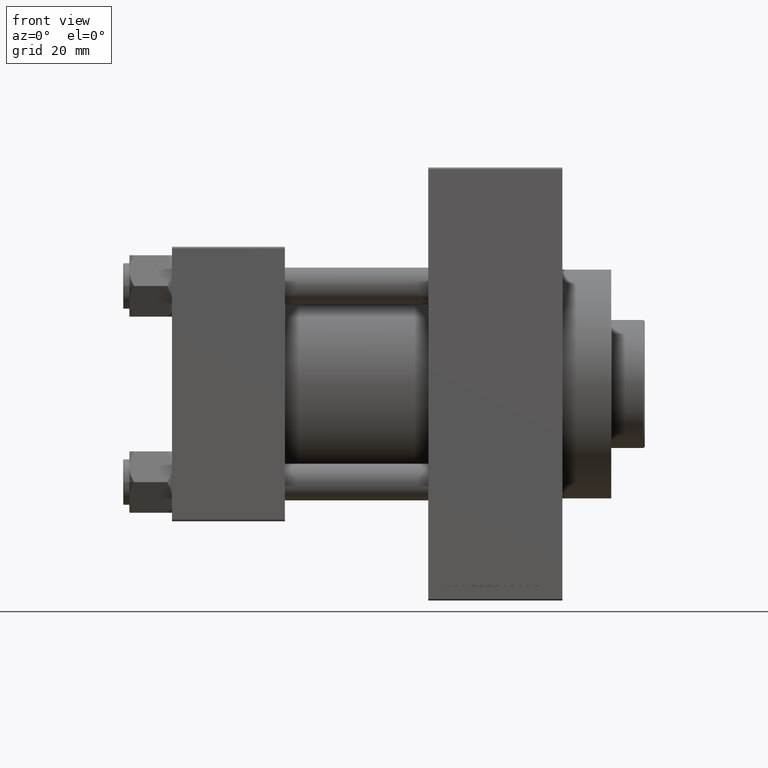
[diagram: clean part render]
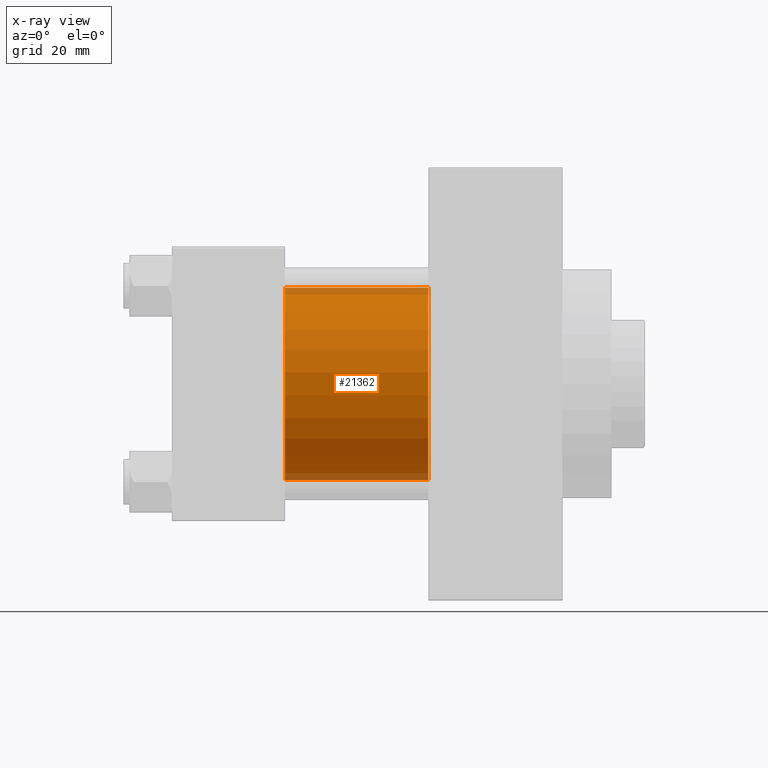
[diagram: x-ray — body ghosted, one internal face saturated and labeled with its STEP entity id]
A machine part, front view, then the same camera in x-ray: the body is ghosted and one INTERNAL B-rep face — a face not visible from any outside direction — is saturated and labeled: STEP entity #21362.
In plain terms, the highlighted cylindrical surface (partial cylindrical patch) has radius 31.5 mm, axis along (-1, -0, -0).
Its self-contained STEP definition (entity closure, byte-faithful):
#1508 = VERTEX_POINT ( 'NONE', #25627 ) ;
#2136 = DIRECTION ( 'NONE',  ( -1.000000000000000000, -0.000000000000000000, -0.000000000000000000 ) ) ;
#2264 = EDGE_LOOP ( 'NONE', ( #34406, #22939, #37715, #25008 ) ) ;
#2552 = AXIS2_PLACEMENT_3D ( 'NONE', #26801, #36847, #11533 ) ;
#5709 = EDGE_CURVE ( 'NONE', #17644, #1508, #21047, .T. ) ;
#7767 = CARTESIAN_POINT ( 'NONE',  ( 83.99999999999998579, -2.602085213965210642E-15, 0.000000000000000000 ) ) ;
#8825 = AXIS2_PLACEMENT_3D ( 'NONE', #7767, #22565, #33559 ) ;
#10502 = VERTEX_POINT ( 'NONE', #45846 ) ;
#11533 = DIRECTION ( 'NONE',  ( 0.000000000000000000, 0.000000000000000000, -1.000000000000000000 ) ) ;
#13221 = CIRCLE ( 'NONE', #2552, 31.50000000000000000 ) ;
#13406 = AXIS2_PLACEMENT_3D ( 'NONE', #13654, #21073, #28222 ) ;
#13654 = CARTESIAN_POINT ( 'NONE',  ( 83.99999999999998579, -2.602085213965210642E-15, 0.000000000000000000 ) ) ;
#13875 = VECTOR ( 'NONE', #2136, 1000.000000000000000 ) ;
#14177 = VERTEX_POINT ( 'NONE', #23691 ) ;
#14766 = LINE ( 'NONE', #25050, #34180 ) ;
#15005 = DIRECTION ( 'NONE',  ( -1.000000000000000000, -0.000000000000000000, -0.000000000000000000 ) ) ;
#17644 = VERTEX_POINT ( 'NONE', #18731 ) ;
#18731 = CARTESIAN_POINT ( 'NONE',  ( 83.99999999999998579, -2.602085213965210642E-15, 31.50000000000000000 ) ) ;
#21047 = CIRCLE ( 'NONE', #8825, 31.50000000000000000 ) ;
#21073 = DIRECTION ( 'NONE',  ( -1.000000000000000000, -0.000000000000000000, -0.000000000000000000 ) ) ;
#21362 = ADVANCED_FACE ( 'NONE', ( #35862 ), #46383, .F. ) ;
#22565 = DIRECTION ( 'NONE',  ( 1.000000000000000000, 0.000000000000000000, 0.000000000000000000 ) ) ;
#22939 = ORIENTED_EDGE ( 'NONE', *, *, #43504, .T. ) ;
#23691 = CARTESIAN_POINT ( 'NONE',  ( 37.00000000000000000, 1.255552203348951850E-15, -31.50000000000000000 ) ) ;
#25008 = ORIENTED_EDGE ( 'NONE', *, *, #30493, .F. ) ;
#25050 = CARTESIAN_POINT ( 'NONE',  ( 83.99999999999998579, -2.602085213965210642E-15, 31.50000000000000000 ) ) ;
#25627 = CARTESIAN_POINT ( 'NONE',  ( 83.99999999999998579, 1.255552203348951850E-15, -31.50000000000000000 ) ) ;
#26801 = CARTESIAN_POINT ( 'NONE',  ( 37.00000000000000000, -2.602085213965210642E-15, 0.000000000000000000 ) ) ;
#28222 = DIRECTION ( 'NONE',  ( 0.000000000000000000, 0.000000000000000000, 1.000000000000000000 ) ) ;
#30493 = EDGE_CURVE ( 'NONE', #17644, #10502, #14766, .T. ) ;
#33559 = DIRECTION ( 'NONE',  ( 0.000000000000000000, 0.000000000000000000, -1.000000000000000000 ) ) ;
#34180 = VECTOR ( 'NONE', #15005, 1000.000000000000000 ) ;
#34406 = ORIENTED_EDGE ( 'NONE', *, *, #5709, .T. ) ;
#34595 = LINE ( 'NONE', #35064, #13875 ) ;
#35064 = CARTESIAN_POINT ( 'NONE',  ( 83.99999999999998579, 1.255552203348951850E-15, -31.50000000000000000 ) ) ;
#35862 = FACE_OUTER_BOUND ( 'NONE', #2264, .T. ) ;
#36847 = DIRECTION ( 'NONE',  ( 1.000000000000000000, 0.000000000000000000, 0.000000000000000000 ) ) ;
#37715 = ORIENTED_EDGE ( 'NONE', *, *, #46582, .F. ) ;
#43504 = EDGE_CURVE ( 'NONE', #1508, #14177, #34595, .T. ) ;
#45846 = CARTESIAN_POINT ( 'NONE',  ( 37.00000000000000000, -2.602085213965210642E-15, 31.50000000000000000 ) ) ;
#46383 = CYLINDRICAL_SURFACE ( 'NONE', #13406, 31.50000000000000000 ) ;
#46582 = EDGE_CURVE ( 'NONE', #10502, #14177, #13221, .T. ) ;